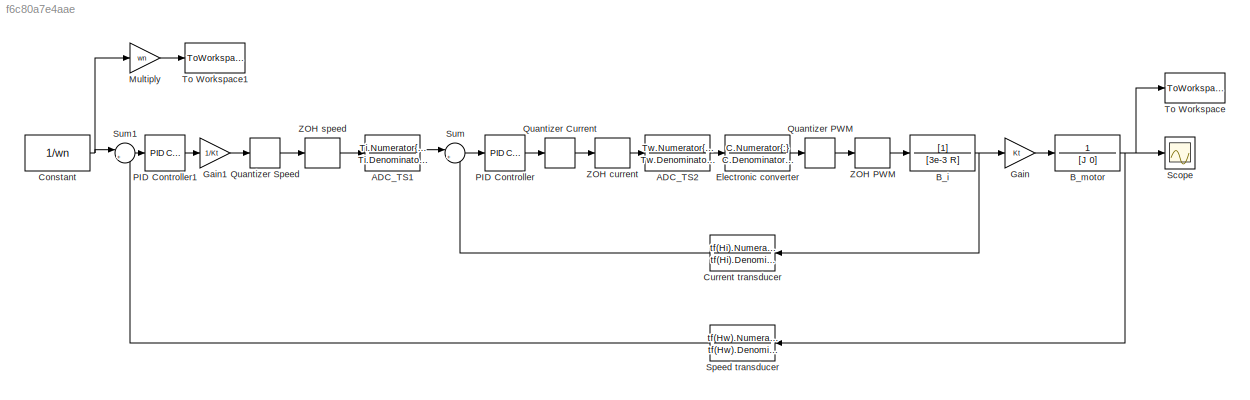
MODEL slx_f6c80a7e4aae
KIND model
CONFIG AbsTol = auto
CONFIG EnableMultiTasking = off
CONFIG FixedStep = auto
CONFIG MaxStep = auto
CONFIG MinStep = auto
CONFIG RelTol = 1e-3
CONFIG SampleTimeConstraint = Unconstrained
CONFIG Solver = VariableStepAuto
CONFIG SolverName = VariableStepAuto
CONFIG StartTime = 0.0
CONFIG StopTime = 0.5
BLOCK [TransferFcn] ADC_TS1
  Denominator = Ti.Denominator{:}
  Numerator = Ti.Numerator{:}
BLOCK [TransferFcn] ADC_TS2 
  Denominator = Tw.Denominator{:}
  Numerator = Tw.Numerator{:}
BLOCK [TransferFcn] B_i
  Denominator = [3e-3 R]
BLOCK [TransferFcn] B_motor
  Denominator = [J 0]
  Numerator = 1
BLOCK [Constant] Constant
  Value = 1/wn
BLOCK [TransferFcn] Current transducer
  Denominator = tf(Hi).Denominator{:}
  Numerator = tf(Hi).Numerator{:}
BLOCK [TransferFcn] Electronic converter
  Denominator = C.Denominator{:}
  Numerator = C.Numerator{:}
BLOCK [Gain] Gain
  Gain = Kt
  OutDataTypeStr = Inherit: Inherit via internal rule
  ParamDataTypeStr = Inherit: Inherit via internal rule
  SaturateOnIntegerOverflow = off
BLOCK [Gain] Gain1
  Gain = 1/Kt
  OutDataTypeStr = Inherit: Inherit via internal rule
  ParamDataTypeStr = Inherit: Inherit via internal rule
  SaturateOnIntegerOverflow = off
BLOCK [Gain] Multiply
  Gain = wn
  OutDataTypeStr = Inherit: Inherit via internal rule
  ParamDataTypeStr = Inherit: Inherit via internal rule
  SaturateOnIntegerOverflow = off
BLOCK [Reference] PID Controller  REF=simulink/Continuous/PID Controller
  Ports = [1, 1]
  SourceBlock = simulink/Continuous/PID Controller
  SourceProductBaseCode = SL
  SourceProductName = Simulink
  SourceType = PID 1dof
BLOCK [Reference] PID Controller1  REF=simulink/Continuous/PID Controller
  Ports = [1, 1]
  SourceBlock = simulink/Continuous/PID Controller
  SourceProductBaseCode = SL
  SourceProductName = Simulink
  SourceType = PID 1dof
BLOCK [Quantizer] Quantizer Current
  LinearizeAsGain = off
  QuantizationInterval = 2*In/(2^(bit_I))
BLOCK [Quantizer] Quantizer PWM
  LinearizeAsGain = off
  QuantizationInterval = Vn / (2^(bit_PWM))
BLOCK [Quantizer] Quantizer Speed 
  LinearizeAsGain = off
  QuantizationInterval = 2*pi/(ppr_speed)
BLOCK [Scope] Scope
  Floating = off
  NumInputPorts = 1
  Ports = [1]
  ScopeSpecificationString = Simulink.scopes.TimeScopeBlockCfg('CurrentConfiguration', extmgr.ConfigurationSet(extmgr.Configuration('Core','General UI',true),extmgr.Configuration('Core','Source UI',true),extmgr.Configuration('Sources','WiredSimulink',true),extmgr.Configuration('Visuals','Time Domain',true,'SerializedDisplays',{struct('MinYLimReal','-0.18723','MaxYLimReal','1.68509','YLabelReal','','MinYLimMag','0.00000','MaxY...<+1373ch>
BLOCK [TransferFcn] Speed transducer
  Denominator = tf(Hw).Denominator{:}
  Numerator = tf(Hw).Numerator{:}
BLOCK [Sum] Sum
  IconShape = round
  InputSameDT = off
  Inputs = |+-
  OutDataTypeStr = Inherit: Inherit via internal rule
  Ports = [2, 1]
  SaturateOnIntegerOverflow = off
BLOCK [Sum] Sum1
  IconShape = round
  InputSameDT = off
  Inputs = |+-
  OutDataTypeStr = Inherit: Inherit via internal rule
  Ports = [2, 1]
  SaturateOnIntegerOverflow = off
BLOCK [ToWorkspace] To Workspace
  FixptAsFi = on
  MaxDataPoints = inf
  Ports = [1]
  SampleTime = -1
  SaveFormat = Timeseries
  VariableName = Om_output
BLOCK [ToWorkspace] To Workspace1
  FixptAsFi = on
  MaxDataPoints = inf
  Ports = [1]
  SampleTime = -1
  SaveFormat = Timeseries
  VariableName = Om_input
BLOCK [ZeroOrderHold] ZOH PWM
  SampleTime = -1
BLOCK [ZeroOrderHold] ZOH current
  SampleTime = Tsi
BLOCK [ZeroOrderHold] ZOH speed
  SampleTime = Tsw
LINE ADC_TS1:1 -> Sum:1
LINE ADC_TS2 :1 -> Electronic converter:1
NET B_i:1 -> Current transducer:1, Gain:1
NET B_motor:1 -> Scope:1, Speed transducer:1, To Workspace:1
NET Constant:1 -> Multiply:1, Sum1:1
LINE Current transducer:1 -> Sum:2
LINE Electronic converter:1 -> Quantizer PWM:1
LINE Gain1:1 -> Quantizer Speed :1
LINE Gain:1 -> B_motor:1
LINE Multiply:1 -> To Workspace1:1
LINE PID Controller1:1 -> Gain1:1
LINE PID Controller:1 -> Quantizer Current:1
LINE Quantizer Current:1 -> ZOH current:1
LINE Quantizer PWM:1 -> ZOH PWM:1
LINE Quantizer Speed :1 -> ZOH speed:1
LINE Speed transducer:1 -> Sum1:2
LINE Sum1:1 -> PID Controller1:1
LINE Sum:1 -> PID Controller:1
LINE ZOH PWM:1 -> B_i:1
LINE ZOH current:1 -> ADC_TS2 :1
LINE ZOH speed:1 -> ADC_TS1:1
note: NET lines group one-source signal fan-out (src -> all destinations, sorted); 1:1 wires keep LINE
